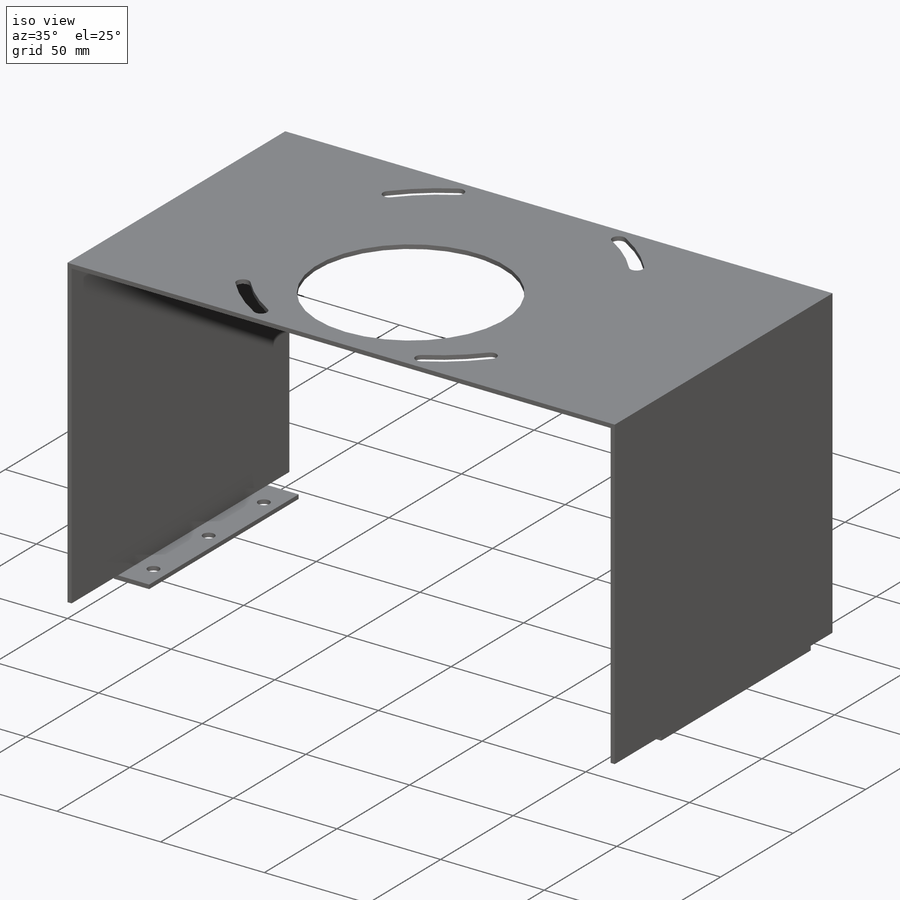
[diagram: iso view]
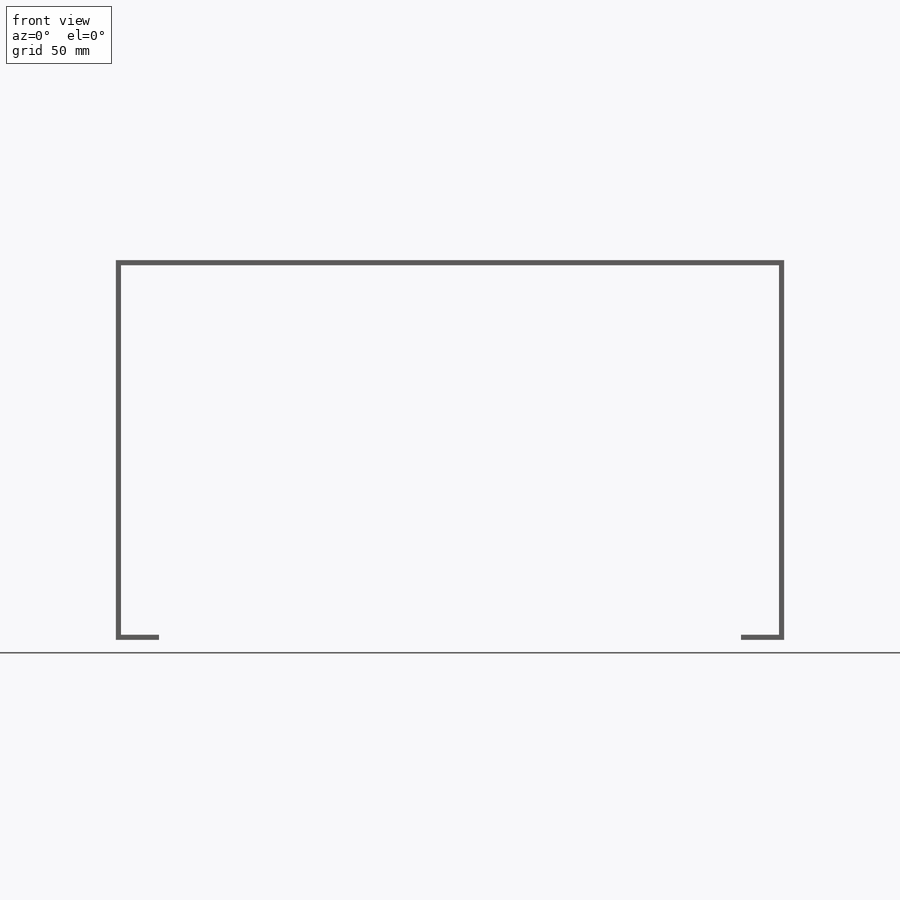
[diagram: front view]
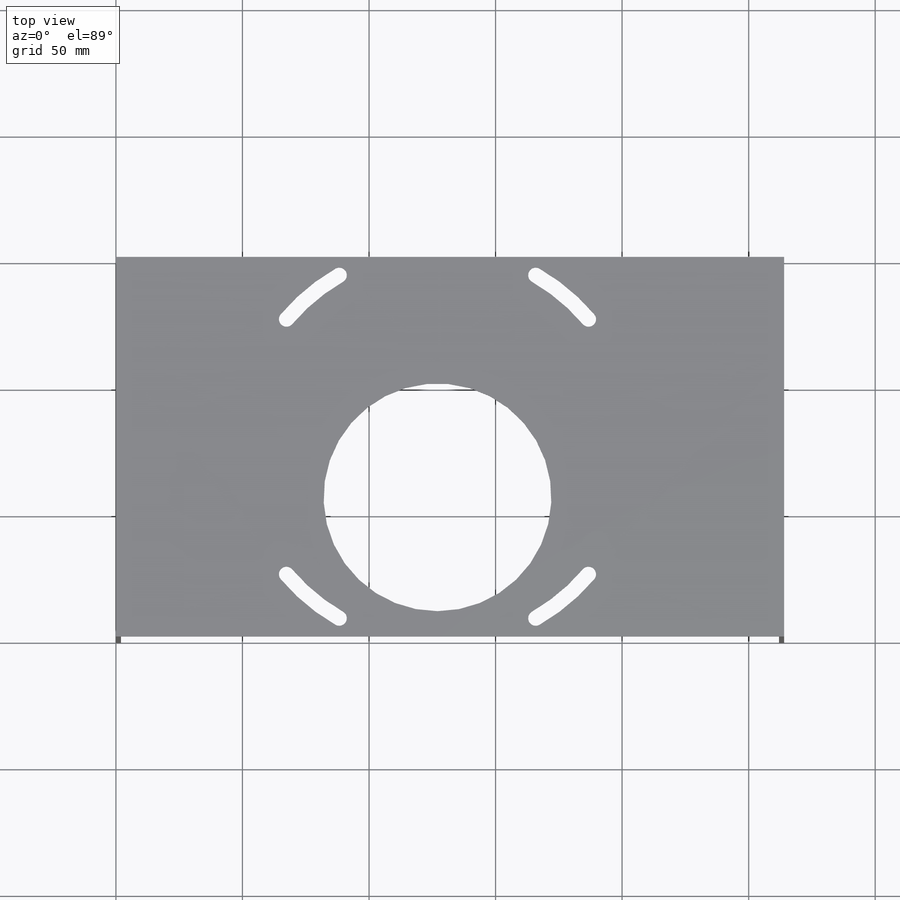
[diagram: top view]
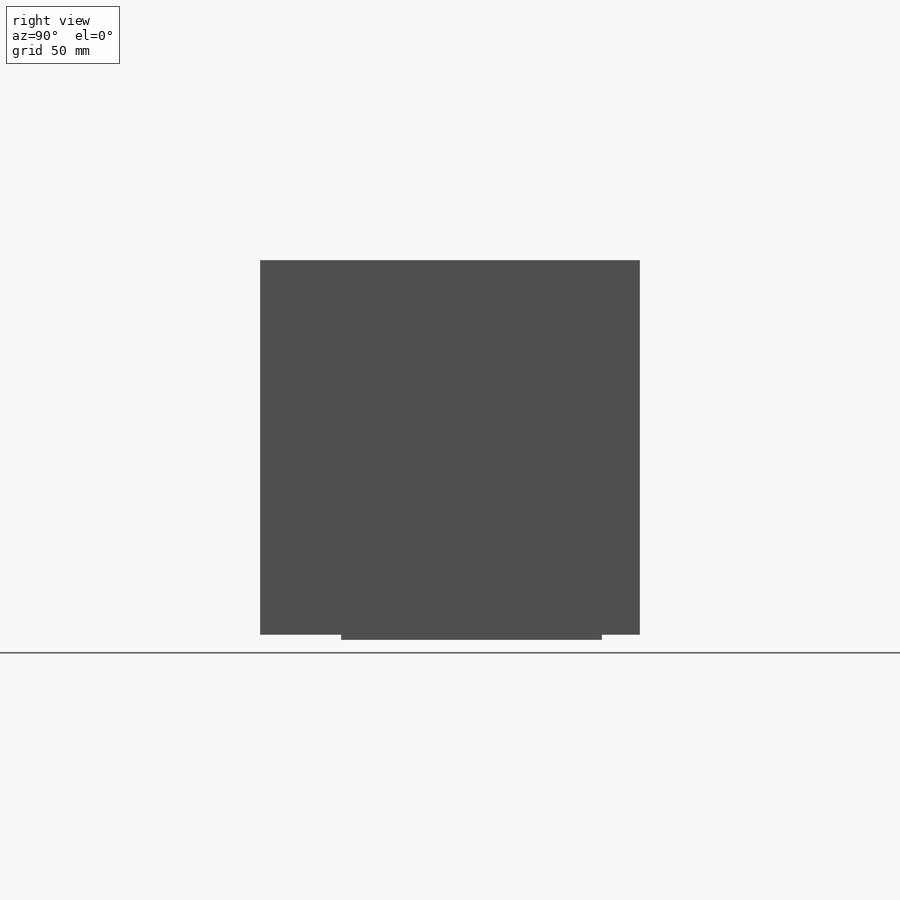
[diagram: right view]
SOLIDWORKS PART (.sldprt)
format: sldprt  version: not decoded by parser v0  size: 280,576 bytes
history: native  units: mm
features: sketch x6, cut_extrude x3, material x1, extrude x1, hole x1 (+16 scaffold rows collapsed)
feature tree (28):
  scaffold x16  (default folders/planes/origin — collapsed)
  material  "Material <not specified>"
  sketch  "Sketch1"  dims[D1=264.0mm D2=150.0mm D3=17.0mm D4=2.0mm]
  extrude  "Boss-Extrude1"  Depth=150mm
  sketch  "Sketch2"  dims[c1.D1=~156.204994mm c1.D2=84.0mm c1.D3=76.0mm c2.D2=42.0mm c2.D3=80.0mm c2.D4=~37.424672mm c2.D5=~30.899014mm c3.D2=3.0mm c3.D3=3.0mm c3.D6=100.0mm c3.D4=~54.135981mm c3.D5=127.06mm c4.D4=20.0deg c4.D5=35.0deg c5.D4=20.0deg]
  cut_extrude  "Cut-Extrude1"  [1 undecoded]
  sketch  "Sketch3"  dims[D1=90.0mm D2=20.0mm D3=127.06mm]
  cut_extrude  "Cut-Extrude2"  Depth=100mm
  hole  "M5 Clearance Hole1"  Diameter=5.5mm Depth=2mm
  sketch  "Sketch6"  dims[c1.D1=37.0mm c1.D2=10.0mm c1.D3=38.0mm c2.D1=34.0mm c2.D3=42.0mm c3.D1=38.0mm c3.D3=38.0mm c3.D4=45.0mm]
  sketch  "Sketch5"  dims[hole-wizard template sketch: 60 standard entries collapsed; hole parameters kept: c18.Thru Hole Depth=2.0mm]
  sketch  "Sketch7"  dims[c1.D1=2.0mm c1.D2=32.0mm c2.D1=15.0mm]
  cut_extrude  "Cut-Extrude3"  [1 undecoded]
decode coverage: 9 of 11 modeling features carry decoded parameters
note: ~ marks probable driven/reference dimensions
note: 2 parameter values undecoded
note: suppression state not decoded; provenance and decode notes live in map.json
